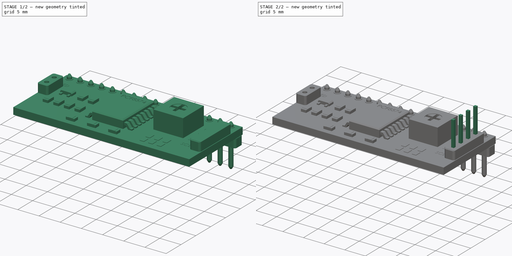
[diagram: build sequence overview — one tinted view per stage of 2, left to right]
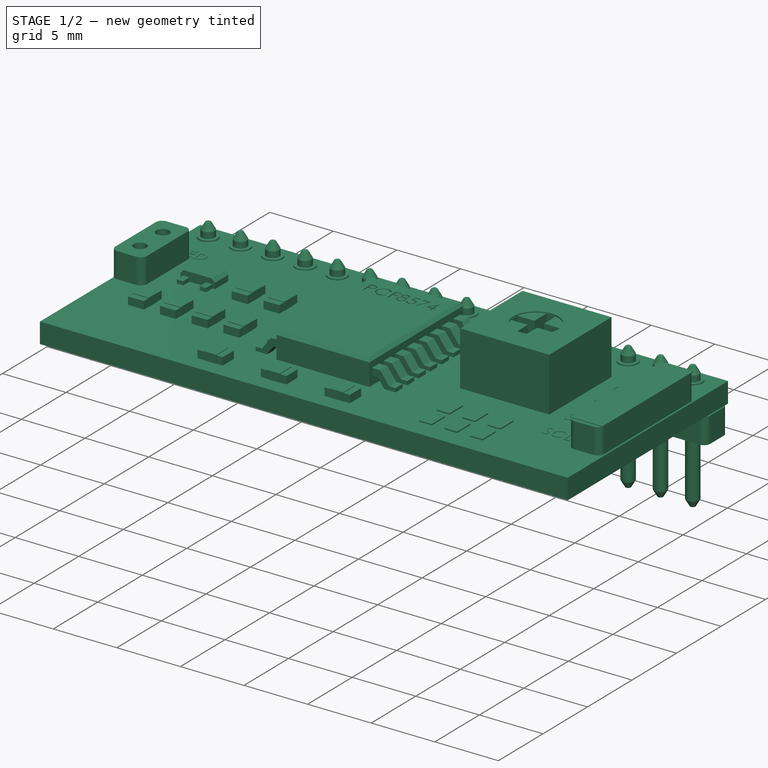
[diagram: stage 1 of 2 — iso view after this stage's code; geometry added in this stage tinted green]
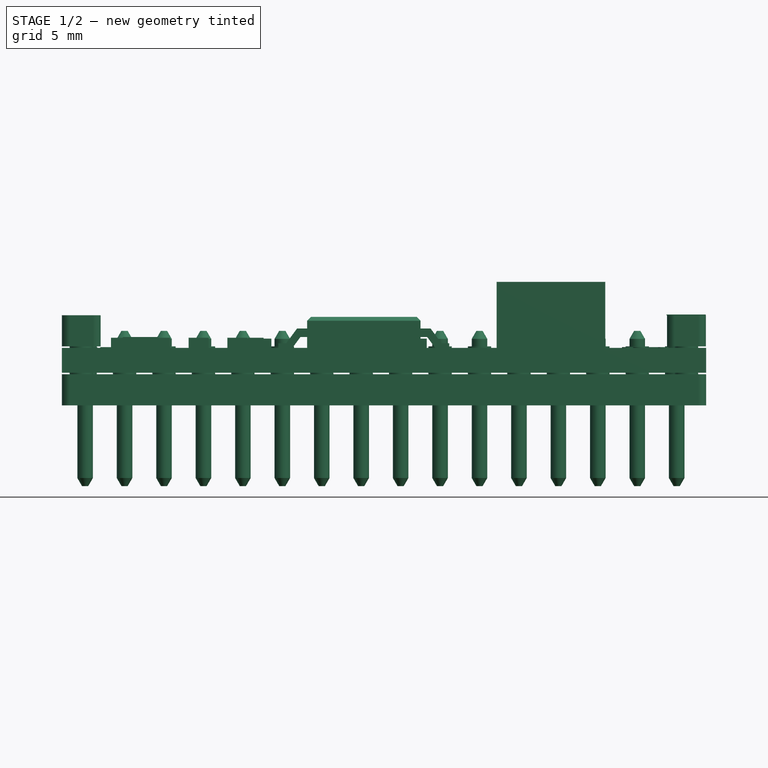
[diagram: stage 1 of 2 — front view after this stage's code; geometry added in this stage tinted green]
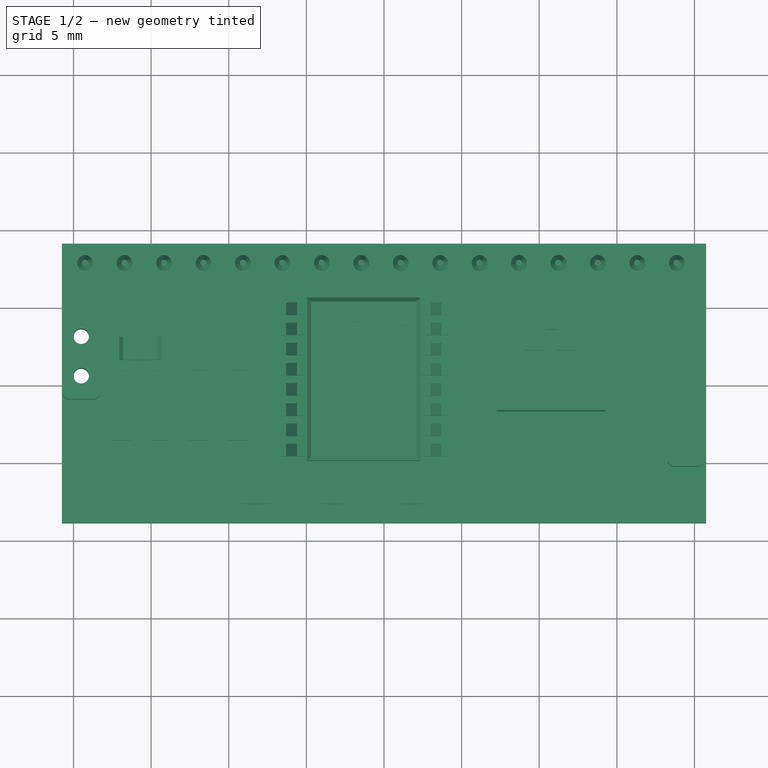
[diagram: stage 1 of 2 — top view after this stage's code; geometry added in this stage tinted green]
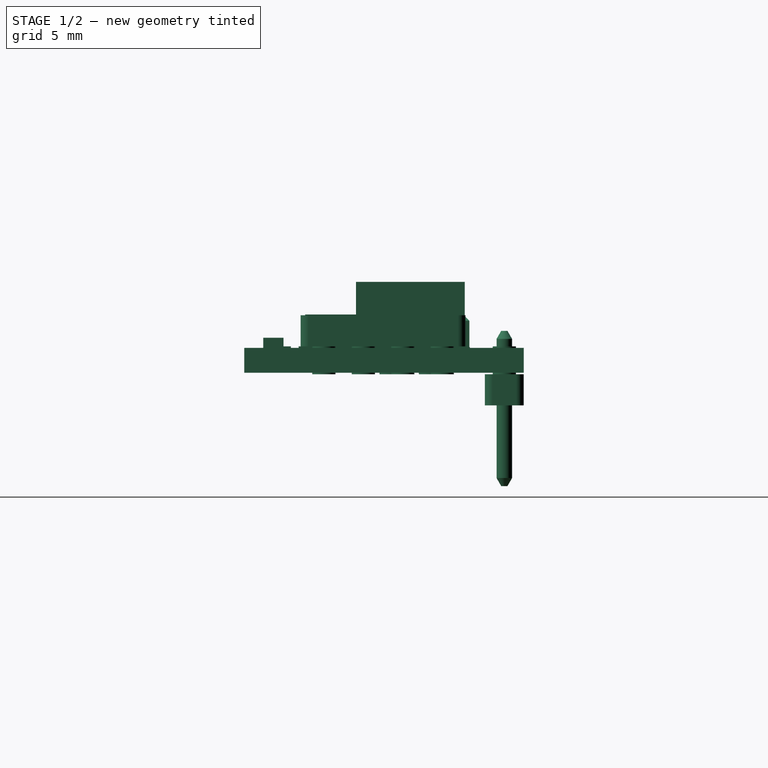
[diagram: stage 1 of 2 — right view after this stage's code; geometry added in this stage tinted green]
FCSTD DOCUMENT  (FreeCAD 0.19R24276 (Git))
Label: module_i2c_pcd8574
License: All rights reserved
LicenseURL: http://en.wikipedia.org/wiki/All_rights_reserved
objects: Sketcher::SketchObject×2, PartDesign::Pad×2, Part::Feature×1, PartDesign::Body×1
note: 8 computed .brp shape members not serialized (recipe doc carries the construction recipe); baked Part::Feature solids carry a one-line shape summary decoded from their .brp

FEATURE [Part::Feature] Part__Feature  label="User Library-I2C LCD Adapter PCF8574"
  shape: bbox 41.5 x 18 x 13.15 mm, 978 faces (baked)
FEATURE [Sketcher::SketchObject] Sketch  label="base_4_pin"
  FullyConstrained = false
  MapMode = 5
  Placement = pos=(0,0,3.7) rot=(0,0,1;0rad)
  Support = -> [Part__Feature]
  sketch-geometry (4):
    g0: LineSegment StartX=18.1847 StartY=5.08 StartZ=0 EndX=20.7247 EndY=5.08 EndZ=0
    g1: LineSegment StartX=20.7247 StartY=5.08 StartZ=0 EndX=20.7247 EndY=-5.08 EndZ=0
    g2: LineSegment StartX=20.7247 StartY=-5.08 StartZ=0 EndX=18.1847 EndY=-5.08 EndZ=0
    g3: LineSegment StartX=18.1847 StartY=-5.08 StartZ=0 EndX=18.1847 EndY=5.08 EndZ=0
  constraints (11):
    c: Coincident(g0,g1)
    c: Coincident(g1,g2)
    c: Coincident(g2,g3)
    c: Coincident(g3,g0)
    c: Horizontal(g0)
    c: Horizontal(g2)
    c: Vertical(g1)
    c: Vertical(g3)
    c: DistanceY(g2,g0) = 10.16
    c: DistanceX(g0,g0) = 2.54
    c: DistanceY(g2,g-1) = 5.08
FEATURE [PartDesign::Pad] Pad  label="base_4_pin_part"
  Direction = (1,1,1)
  Length = 0.05
  Length2 = 100
  Profile = -> Sketch
  Type = 0
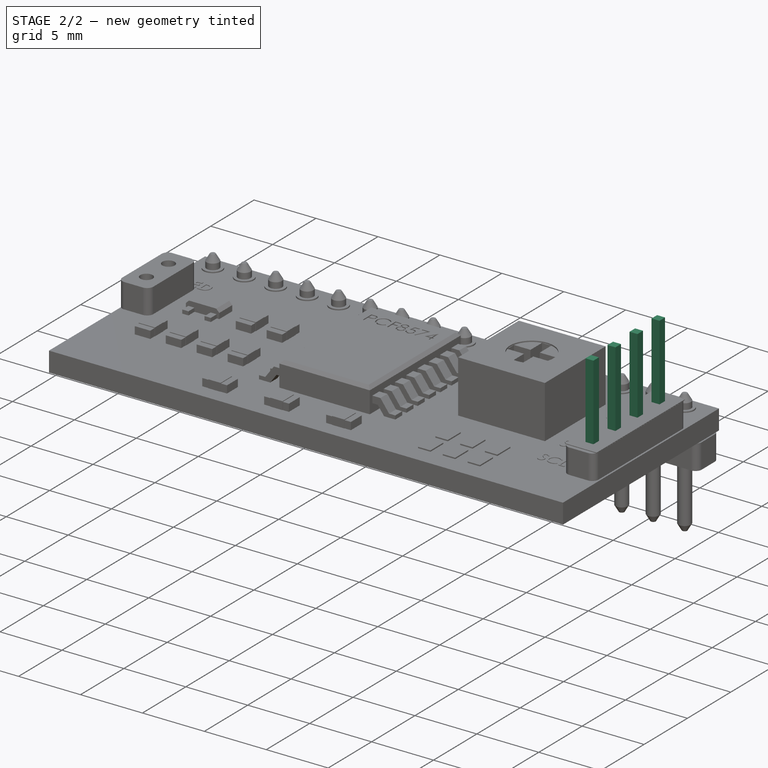
[diagram: stage 2 of 2 — iso view after this stage's code; geometry added in this stage tinted green]
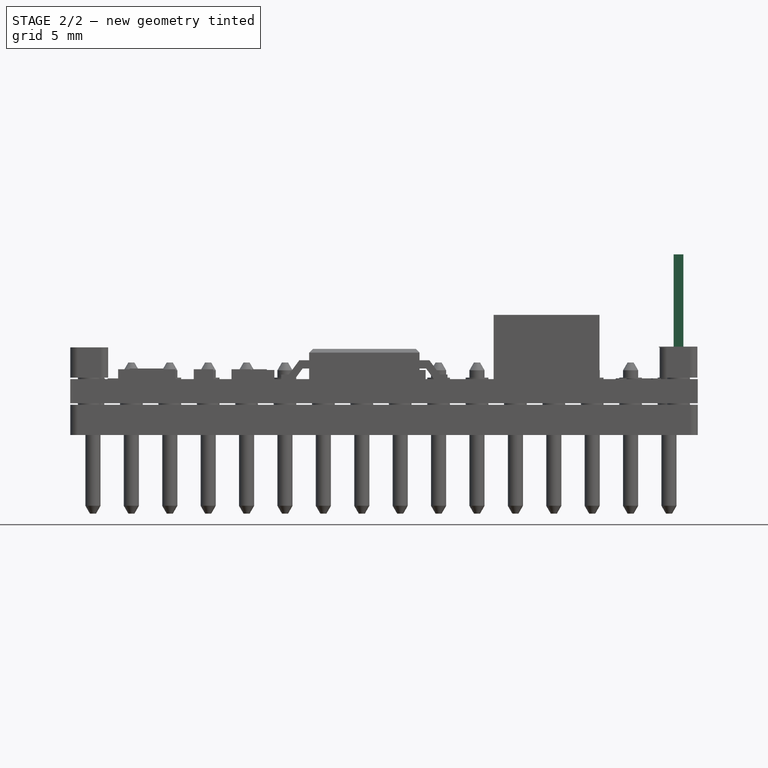
[diagram: stage 2 of 2 — front view after this stage's code; geometry added in this stage tinted green]
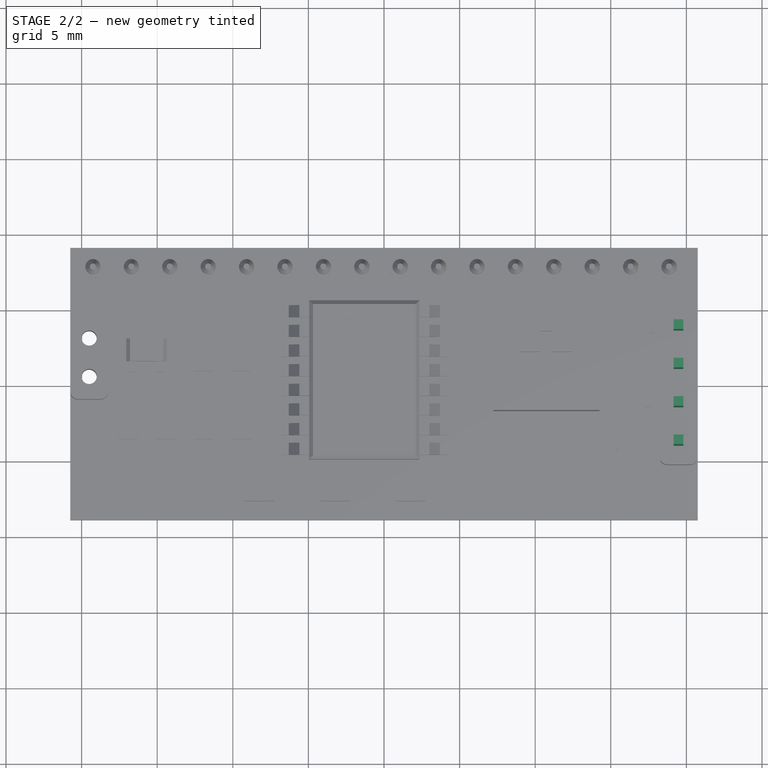
[diagram: stage 2 of 2 — top view after this stage's code; geometry added in this stage tinted green]
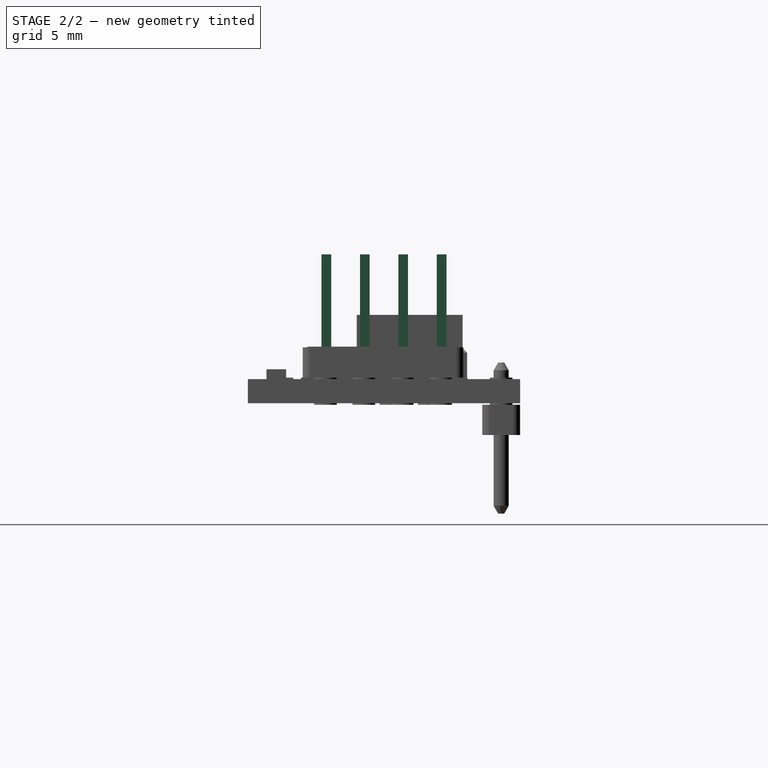
[diagram: stage 2 of 2 — right view after this stage's code; geometry added in this stage tinted green]
FEATURE [Sketcher::SketchObject] Sketch001  label="4_pin"
  FullyConstrained = true
  MapMode = 5
  Placement = pos=(0,0,3.75) rot=(0,0,1;0rad)
  Support = -> [Pad]
  sketch-geometry (16):
    g0: LineSegment StartX=19.16 StartY=4.13 StartZ=0 EndX=19.8 EndY=4.13 EndZ=0
    g1: LineSegment StartX=19.8 StartY=4.13 StartZ=0 EndX=19.8 EndY=3.49 EndZ=0
    g2: LineSegment StartX=19.8 StartY=3.49 StartZ=0 EndX=19.16 EndY=3.49 EndZ=0
    g3: LineSegment StartX=19.16 StartY=3.49 StartZ=0 EndX=19.16 EndY=4.13 EndZ=0
    g4: LineSegment StartX=19.16 StartY=1.59 StartZ=0 EndX=19.8 EndY=1.59 EndZ=0
    g5: LineSegment StartX=19.8 StartY=1.59 StartZ=0 EndX=19.8 EndY=0.95 EndZ=0
    g6: LineSegment StartX=19.8 StartY=0.95 StartZ=0 EndX=19.16 EndY=0.95 EndZ=0
    g7: LineSegment StartX=19.16 StartY=0.95 StartZ=0 EndX=19.16 EndY=1.59 EndZ=0
    g8: LineSegment StartX=19.16 StartY=-0.95 StartZ=0 EndX=19.8 EndY=-0.95 EndZ=0
    g9: LineSegment StartX=19.8 StartY=-0.95 StartZ=0 EndX=19.8 EndY=-1.59 EndZ=0
    g10: LineSegment StartX=19.8 StartY=-1.59 StartZ=0 EndX=19.16 EndY=-1.59 EndZ=0
    g11: LineSegment StartX=19.16 StartY=-1.59 StartZ=0 EndX=19.16 EndY=-0.95 EndZ=0
    g12: LineSegment StartX=19.16 StartY=-3.49 StartZ=0 EndX=19.8 EndY=-3.49 EndZ=0
    g13: LineSegment StartX=19.8 StartY=-3.49 StartZ=0 EndX=19.8 EndY=-4.13 EndZ=0
    g14: LineSegment StartX=19.8 StartY=-4.13 StartZ=0 EndX=19.16 EndY=-4.13 EndZ=0
    g15: LineSegment StartX=19.16 StartY=-4.13 StartZ=0 EndX=19.16 EndY=-3.49 EndZ=0
  constraints (48):
    c: Coincident(g0,g1)
    c: Coincident(g1,g2)
    c: Coincident(g2,g3)
    c: Coincident(g3,g0)
    c: Horizontal(g0)
    c: Horizontal(g2)
    c: Vertical(g1)
    c: Vertical(g3)
    c: DistanceX(g0,g0) = 0.64
    c: DistanceY(g2,g0) = 0.64
    c: Coincident(g4,g5)
    c: Coincident(g5,g6)
    c: Coincident(g6,g7)
    c: Coincident(g7,g4)
    c: Horizontal(g4)
    c: Horizontal(g6)
    c: Vertical(g5)
    c: Vertical(g7)
    c: DistanceX(g4,g4) = 0.64
    c: DistanceY(g6,g4) = 0.64
    c: DistanceY(g-1,g6) = 0.95
    c: DistanceX(g-1,g6) = 19.16
    c: DistanceX(g-1,g2) = 19.16
    c: DistanceY(g-1,g2) = 3.49
    c: Coincident(g8,g9)
    c: Coincident(g9,g10)
    c: Coincident(g10,g11)
    c: Coincident(g11,g8)
    c: Horizontal(g8)
    c: Horizontal(g10)
    c: Vertical(g9)
    c: Vertical(g11)
    c: Coincident(g12,g13)
    c: Coincident(g13,g14)
    c: Coincident(g14,g15)
    c: Coincident(g15,g12)
    c: Horizontal(g12)
    c: Horizontal(g14)
    c: Vertical(g13)
    c: Vertical(g15)
    c: DistanceY(g10,g8) = 0.64
    c: DistanceY(g14,g12) = 0.64
    c: DistanceX(g8,g8) = 0.64
    c: DistanceX(g12,g12) = 0.64
    c: DistanceY(g8,g-1) = 0.95
    c: DistanceX(g-1,g8) = 19.16
    c: DistanceX(g-1,g12) = 19.16
    c: DistanceY(g12,g-1) = 3.49
FEATURE [PartDesign::Pad] Pad001  label="4_pin_part"
  BaseFeature = -> Pad
  Direction = (1,1,1)
  Length = 6.1
  Length2 = 100
  Profile = -> Sketch001
  Type = 0
FEATURE [PartDesign::Body] Body
  Group = -> [Sketch,Pad,Sketch001,Pad001]
  Origin = -> Origin
  Tip = -> Pad001
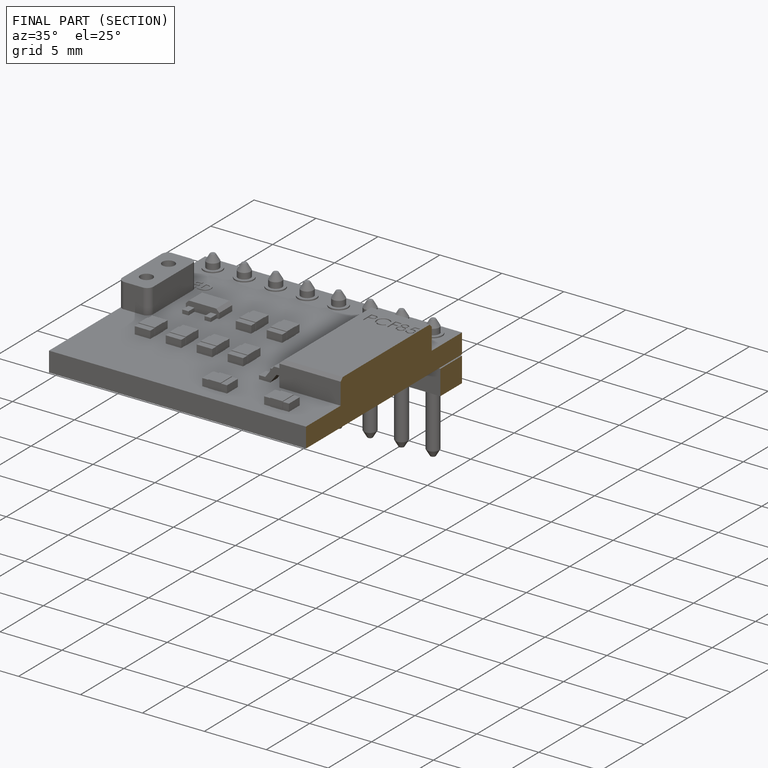
[diagram: finished part — half-section view (interior)]
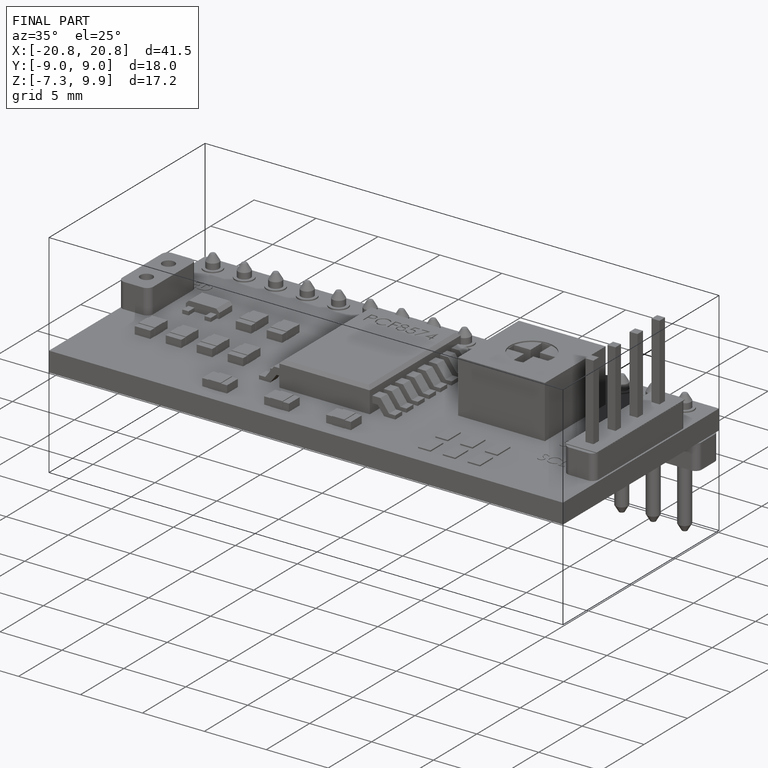
[diagram: finished part — iso view with bounding-box wireframe]
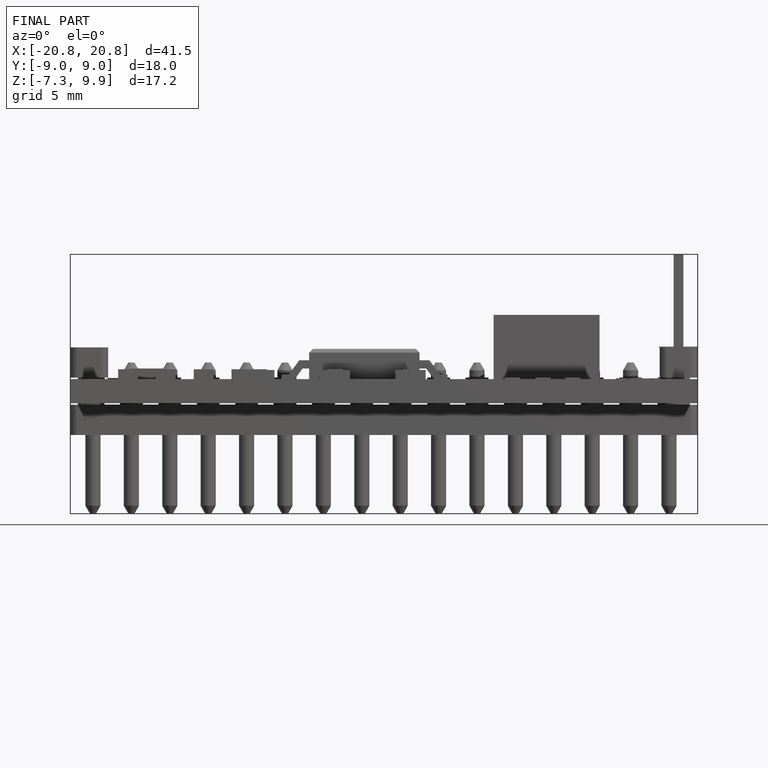
[diagram: finished part — front view with bounding-box wireframe]
